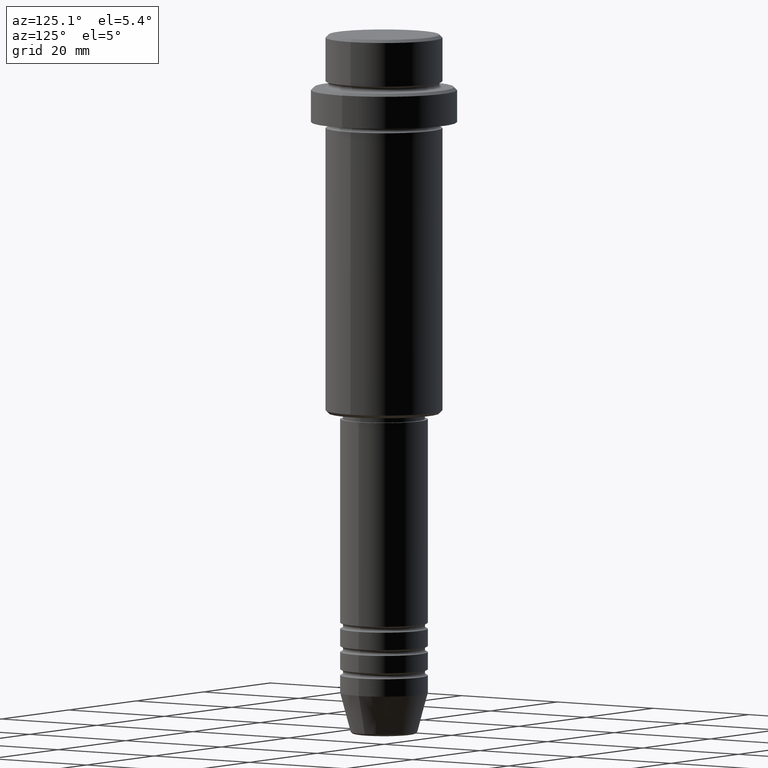
[diagram: clean part render]
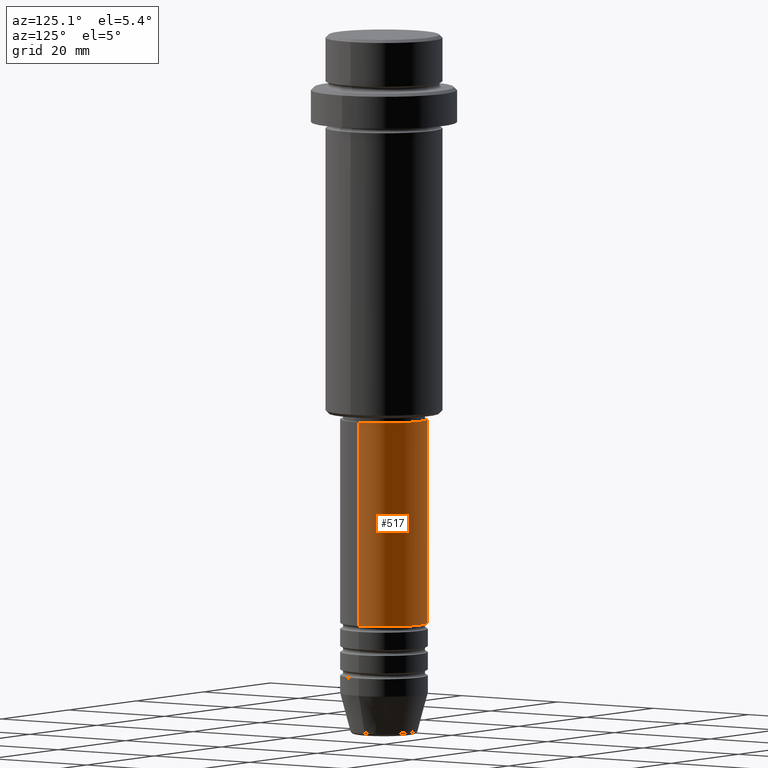
[diagram: same view with one face highlighted and labeled with its STEP entity id]
A machine part, auxiliary view. The second image highlights one B-rep face of the part: STEP entity #517.
In plain terms, the highlighted cylindrical surface (partial cylindrical patch) has radius 7.5 mm, axis along (-0, -0, 1).
Its self-contained STEP definition (entity closure, byte-faithful):
#13 = EDGE_CURVE ( 'NONE', #1070, #238, #600, .T. ) ;
#37 = CARTESIAN_POINT ( 'NONE',  ( 7.500000000000000000, 0.000000000000000000, 0.000000000000000000 ) ) ;
#43 = CARTESIAN_POINT ( 'NONE',  ( -7.500000000000000000, 9.184850993605147944E-16, -100.9999999999999005 ) ) ;
#94 = CARTESIAN_POINT ( 'NONE',  ( -7.500000000000000000, 9.184850993605147944E-16, -66.00000000000000000 ) ) ;
#164 = ORIENTED_EDGE ( 'NONE', *, *, #13, .F. ) ;
#165 = DIRECTION ( 'NONE',  ( 1.000000000000000000, 0.000000000000000000, 0.000000000000000000 ) ) ;
#213 = CARTESIAN_POINT ( 'NONE',  ( 7.500000000000000000, 0.000000000000000000, -66.00000000000000000 ) ) ;
#220 = CIRCLE ( 'NONE', #928, 7.500000000000000000 ) ;
#229 = DIRECTION ( 'NONE',  ( -0.000000000000000000, -0.000000000000000000, 1.000000000000000000 ) ) ;
#238 = VERTEX_POINT ( 'NONE', #94 ) ;
#314 = CARTESIAN_POINT ( 'NONE',  ( 7.500000000000000000, 0.000000000000000000, -100.9999999999999005 ) ) ;
#361 = CARTESIAN_POINT ( 'NONE',  ( 0.000000000000000000, 0.000000000000000000, 0.000000000000000000 ) ) ;
#397 = DIRECTION ( 'NONE',  ( -0.000000000000000000, -0.000000000000000000, 1.000000000000000000 ) ) ;
#441 = DIRECTION ( 'NONE',  ( -0.000000000000000000, -0.000000000000000000, 1.000000000000000000 ) ) ;
#449 = CYLINDRICAL_SURFACE ( 'NONE', #766, 7.500000000000000000 ) ;
#462 = FACE_OUTER_BOUND ( 'NONE', #1319, .T. ) ;
#517 = ADVANCED_FACE ( 'NONE', ( #462 ), #449, .T. ) ;
#600 = CIRCLE ( 'NONE', #783, 7.500000000000000000 ) ;
#615 = LINE ( 'NONE', #1280, #1410 ) ;
#632 = CARTESIAN_POINT ( 'NONE',  ( 0.000000000000000000, 0.000000000000000000, -100.9999999999999005 ) ) ;
#676 = LINE ( 'NONE', #37, #860 ) ;
#721 = VERTEX_POINT ( 'NONE', #43 ) ;
#766 = AXIS2_PLACEMENT_3D ( 'NONE', #361, #441, #1327 ) ;
#783 = AXIS2_PLACEMENT_3D ( 'NONE', #1368, #1254, #165 ) ;
#860 = VECTOR ( 'NONE', #1010, 1000.000000000000000 ) ;
#885 = DIRECTION ( 'NONE',  ( 1.000000000000000000, 0.000000000000000000, 0.000000000000000000 ) ) ;
#928 = AXIS2_PLACEMENT_3D ( 'NONE', #632, #229, #885 ) ;
#939 = ORIENTED_EDGE ( 'NONE', *, *, #1413, .F. ) ;
#1010 = DIRECTION ( 'NONE',  ( -0.000000000000000000, -0.000000000000000000, 1.000000000000000000 ) ) ;
#1015 = EDGE_CURVE ( 'NONE', #1037, #721, #220, .T. ) ;
#1037 = VERTEX_POINT ( 'NONE', #314 ) ;
#1070 = VERTEX_POINT ( 'NONE', #213 ) ;
#1182 = ORIENTED_EDGE ( 'NONE', *, *, #1205, .T. ) ;
#1205 = EDGE_CURVE ( 'NONE', #721, #238, #615, .T. ) ;
#1254 = DIRECTION ( 'NONE',  ( -0.000000000000000000, -0.000000000000000000, 1.000000000000000000 ) ) ;
#1280 = CARTESIAN_POINT ( 'NONE',  ( -7.500000000000000000, 9.184850993605147944E-16, 0.000000000000000000 ) ) ;
#1319 = EDGE_LOOP ( 'NONE', ( #1404, #1182, #164, #939 ) ) ;
#1327 = DIRECTION ( 'NONE',  ( 1.000000000000000000, 0.000000000000000000, 0.000000000000000000 ) ) ;
#1368 = CARTESIAN_POINT ( 'NONE',  ( 0.000000000000000000, 0.000000000000000000, -66.00000000000000000 ) ) ;
#1404 = ORIENTED_EDGE ( 'NONE', *, *, #1015, .T. ) ;
#1410 = VECTOR ( 'NONE', #397, 1000.000000000000000 ) ;
#1413 = EDGE_CURVE ( 'NONE', #1037, #1070, #676, .T. ) ;